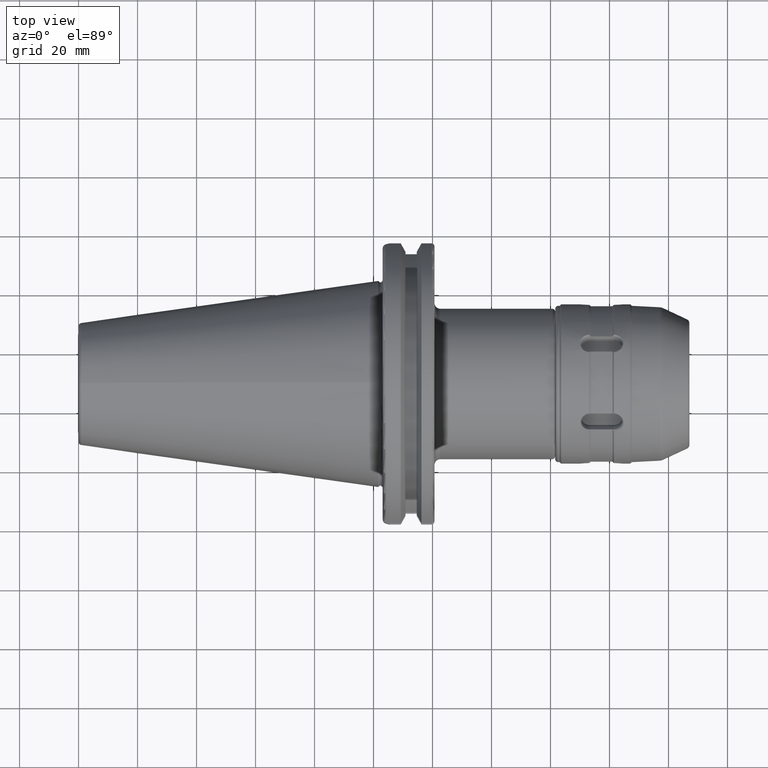
[diagram: clean part render]
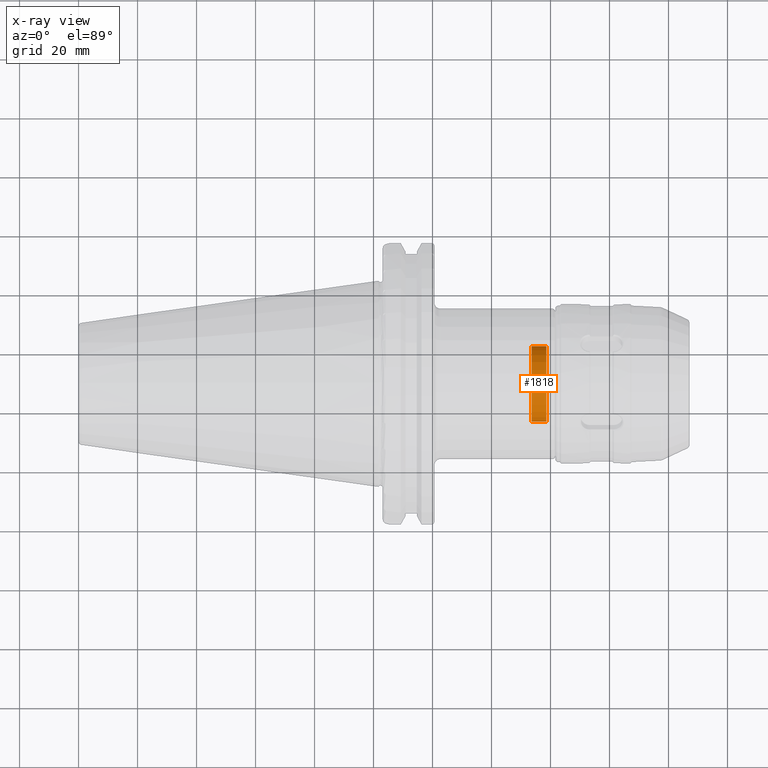
[diagram: x-ray — body ghosted, one internal face saturated and labeled with its STEP entity id]
A machine part, top view, then the same camera in x-ray: the body is ghosted and one INTERNAL B-rep face — a face not visible from any outside direction — is saturated and labeled: STEP entity #1818.
In plain terms, the highlighted cylindrical surface (partial cylindrical patch) has radius 12.8016 mm, axis along (-1, 0, 0).
Its self-contained STEP definition (entity closure, byte-faithful):
#239=CARTESIAN_POINT('',(2.047E0,0.E0,0.E0));
#240=DIRECTION('',(-1.E0,0.E0,0.E0));
#241=DIRECTION('',(0.E0,-1.E0,0.E0));
#242=AXIS2_PLACEMENT_3D('',#239,#240,#241);
#259=DIRECTION('',(-1.E0,0.E0,0.E0));
#260=VECTOR('',#259,1.97E-1);
#261=CARTESIAN_POINT('',(2.244E0,-5.04E-1,0.E0));
#262=LINE('',#261,#260);
#263=CARTESIAN_POINT('',(2.244E0,0.E0,0.E0));
#264=DIRECTION('',(-1.E0,0.E0,0.E0));
#265=DIRECTION('',(0.E0,-1.E0,0.E0));
#266=AXIS2_PLACEMENT_3D('',#263,#264,#265);
#273=DIRECTION('',(-1.E0,0.E0,0.E0));
#274=VECTOR('',#273,1.97E-1);
#275=CARTESIAN_POINT('',(2.244E0,5.04E-1,0.E0));
#276=LINE('',#275,#274);
#1278=CARTESIAN_POINT('',(2.244E0,-5.04E-1,0.E0));
#1279=CARTESIAN_POINT('',(2.244E0,5.04E-1,0.E0));
#1280=VERTEX_POINT('',#1278);
#1281=VERTEX_POINT('',#1279);
#1282=CARTESIAN_POINT('',(2.047E0,-5.04E-1,0.E0));
#1283=CARTESIAN_POINT('',(2.047E0,5.04E-1,0.E0));
#1284=VERTEX_POINT('',#1282);
#1285=VERTEX_POINT('',#1283);
#1804=CARTESIAN_POINT('',(2.244E0,0.E0,0.E0));
#1805=DIRECTION('',(-1.E0,0.E0,0.E0));
#1806=DIRECTION('',(0.E0,-1.E0,0.E0));
#1807=AXIS2_PLACEMENT_3D('',#1804,#1805,#1806);
#1808=CYLINDRICAL_SURFACE('',#1807,5.04E-1);
#1810=ORIENTED_EDGE('',*,*,#1809,.T.);
#1812=ORIENTED_EDGE('',*,*,#1811,.T.);
#1813=ORIENTED_EDGE('',*,*,#1792,.F.);
#1815=ORIENTED_EDGE('',*,*,#1814,.F.);
#1816=EDGE_LOOP('',(#1810,#1812,#1813,#1815));
#1817=FACE_OUTER_BOUND('',#1816,.F.);
#1818=ADVANCED_FACE('',(#1817),#1808,.F.);
#243=CIRCLE('',#242,5.04E-1);
#267=CIRCLE('',#266,5.04E-1);
#1792=EDGE_CURVE('',#1284,#1285,#243,.T.);
#1809=EDGE_CURVE('',#1280,#1281,#267,.T.);
#1811=EDGE_CURVE('',#1281,#1285,#276,.T.);
#1814=EDGE_CURVE('',#1280,#1284,#262,.T.);